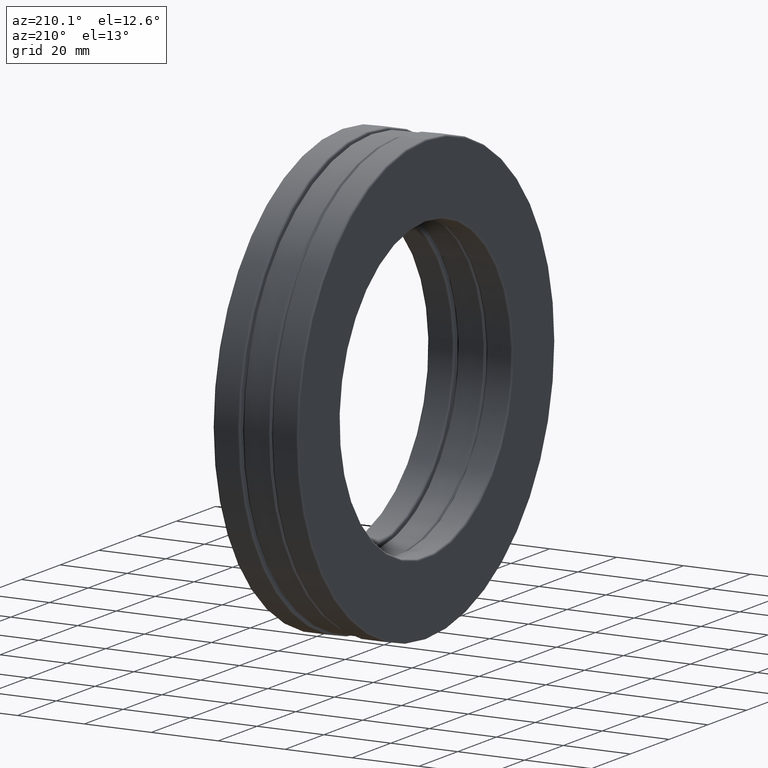
[diagram: clean part render]
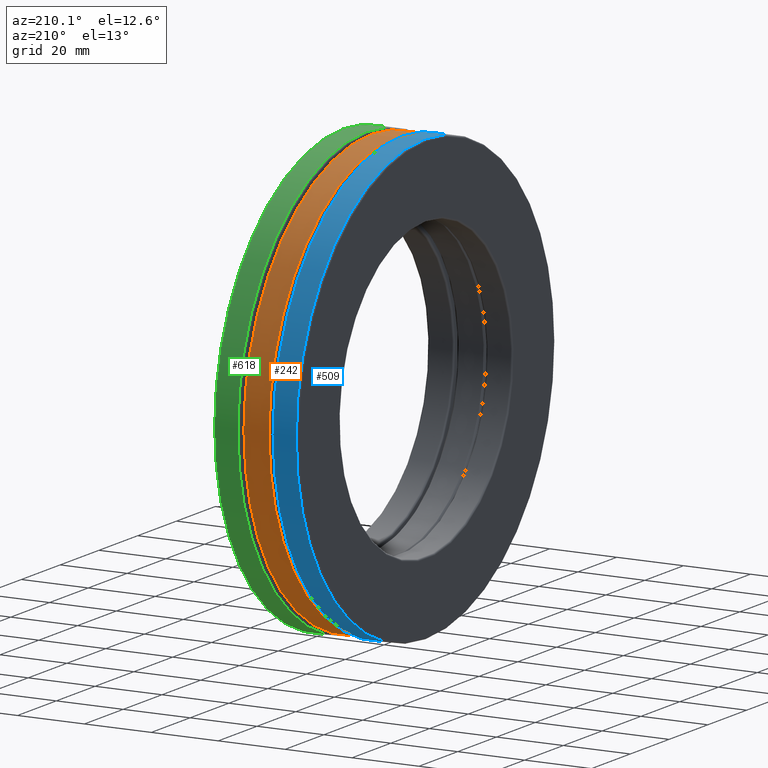
[diagram: same view with three faces highlighted in distinct colors, each labeled with its STEP entity id]
A machine part, auxiliary view with three faces highlighted in distinct colors.
Their STEP definitions:

[orange] entity #242 — the highlighted cylindrical surface (bore or boss wall) has radius 65.7701 mm, axis along (-1, -0, -0).
#5 = VERTEX_POINT ( 'NONE', #1248 ) ;
#10 = DIRECTION ( 'NONE',  ( 0.0000000000000000000, 0.0000000000000000000, 1.000000000000000000 ) ) ;
#78 = DIRECTION ( 'NONE',  ( -1.000000000000000000, -0.0000000000000000000, -0.0000000000000000000 ) ) ;
#114 = AXIS2_PLACEMENT_3D ( 'NONE', #664, #907, #1452 ) ;
#176 = DIRECTION ( 'NONE',  ( 0.0000000000000000000, 0.0000000000000000000, 1.000000000000000000 ) ) ;
#186 = AXIS2_PLACEMENT_3D ( 'NONE', #979, #78, #176 ) ;
#242 = ADVANCED_FACE ( 'NONE', ( #1429, #1097 ), #970, .T. ) ;
#295 = CIRCLE ( 'NONE', #1127, 2.589375000000000000 ) ;
#404 = EDGE_CURVE ( 'NONE', #800, #800, #295, .T. ) ;
#444 = CARTESIAN_POINT ( 'NONE',  ( 0.1475000000000001000, 0.0000000000000000000, 2.589375000000000000 ) ) ;
#628 = ORIENTED_EDGE ( 'NONE', *, *, #404, .T. ) ;
#664 = CARTESIAN_POINT ( 'NONE',  ( 0.0000000000000000000, 0.0000000000000000000, 0.0000000000000000000 ) ) ;
#799 = EDGE_LOOP ( 'NONE', ( #628 ) ) ;
#800 = VERTEX_POINT ( 'NONE', #444 ) ;
#888 = ORIENTED_EDGE ( 'NONE', *, *, #1312, .F. ) ;
#907 = DIRECTION ( 'NONE',  ( -1.000000000000000000, -0.0000000000000000000, -0.0000000000000000000 ) ) ;
#970 = CYLINDRICAL_SURFACE ( 'NONE', #114, 2.589375000000000000 ) ;
#979 = CARTESIAN_POINT ( 'NONE',  ( -0.1475000000000001300, 0.0000000000000000000, 0.0000000000000000000 ) ) ;
#1097 = FACE_OUTER_BOUND ( 'NONE', #1258, .T. ) ;
#1127 = AXIS2_PLACEMENT_3D ( 'NONE', #1259, #1363, #10 ) ;
#1238 = CIRCLE ( 'NONE', #186, 2.589375000000000000 ) ;
#1248 = CARTESIAN_POINT ( 'NONE',  ( -0.1475000000000001300, 0.0000000000000000000, 2.589375000000000000 ) ) ;
#1258 = EDGE_LOOP ( 'NONE', ( #888 ) ) ;
#1259 = CARTESIAN_POINT ( 'NONE',  ( 0.1475000000000001000, 0.0000000000000000000, 0.0000000000000000000 ) ) ;
#1312 = EDGE_CURVE ( 'NONE', #5, #5, #1238, .T. ) ;
#1363 = DIRECTION ( 'NONE',  ( -1.000000000000000000, -0.0000000000000000000, -0.0000000000000000000 ) ) ;
#1429 = FACE_OUTER_BOUND ( 'NONE', #799, .T. ) ;
#1452 = DIRECTION ( 'NONE',  ( 0.0000000000000000000, 0.0000000000000000000, 1.000000000000000000 ) ) ;

[blue] entity #509 — the highlighted cylindrical surface (bore or boss wall) has radius 66.2781 mm, axis along (-1, -0, -0).
#1 = ORIENTED_EDGE ( 'NONE', *, *, #1469, .F. ) ;
#48 = DIRECTION ( 'NONE',  ( -1.000000000000000000, -0.0000000000000000000, -0.0000000000000000000 ) ) ;
#241 = DIRECTION ( 'NONE',  ( -1.000000000000000000, -0.0000000000000000000, -0.0000000000000000000 ) ) ;
#333 = DIRECTION ( 'NONE',  ( -1.000000000000000000, -0.0000000000000000000, -0.0000000000000000000 ) ) ;
#464 = EDGE_LOOP ( 'NONE', ( #749 ) ) ;
#509 = ADVANCED_FACE ( 'NONE', ( #1254, #1290 ), #1443, .T. ) ;
#540 = AXIS2_PLACEMENT_3D ( 'NONE', #1177, #48, #835 ) ;
#585 = CARTESIAN_POINT ( 'NONE',  ( -0.2074999999999997700, 0.0000000000000000000, 2.609375000000000000 ) ) ;
#641 = EDGE_LOOP ( 'NONE', ( #1 ) ) ;
#669 = AXIS2_PLACEMENT_3D ( 'NONE', #1231, #333, #778 ) ;
#718 = CIRCLE ( 'NONE', #669, 2.609375000000000000 ) ;
#749 = ORIENTED_EDGE ( 'NONE', *, *, #987, .T. ) ;
#767 = VERTEX_POINT ( 'NONE', #585 ) ;
#778 = DIRECTION ( 'NONE',  ( 0.0000000000000000000, 0.0000000000000000000, 1.000000000000000000 ) ) ;
#810 = CARTESIAN_POINT ( 'NONE',  ( -0.4800000000000002000, 0.0000000000000000000, 2.609375000000000000 ) ) ;
#835 = DIRECTION ( 'NONE',  ( 0.0000000000000000000, 0.0000000000000000000, 1.000000000000000000 ) ) ;
#987 = EDGE_CURVE ( 'NONE', #767, #767, #1340, .T. ) ;
#1135 = VERTEX_POINT ( 'NONE', #810 ) ;
#1171 = DIRECTION ( 'NONE',  ( 0.0000000000000000000, 0.0000000000000000000, 1.000000000000000000 ) ) ;
#1177 = CARTESIAN_POINT ( 'NONE',  ( 0.0000000000000000000, 0.0000000000000000000, 0.0000000000000000000 ) ) ;
#1231 = CARTESIAN_POINT ( 'NONE',  ( -0.4800000000000002000, 0.0000000000000000000, 0.0000000000000000000 ) ) ;
#1254 = FACE_OUTER_BOUND ( 'NONE', #641, .T. ) ;
#1268 = CARTESIAN_POINT ( 'NONE',  ( -0.2074999999999997700, 0.0000000000000000000, 0.0000000000000000000 ) ) ;
#1290 = FACE_OUTER_BOUND ( 'NONE', #464, .T. ) ;
#1340 = CIRCLE ( 'NONE', #1352, 2.609375000000000000 ) ;
#1352 = AXIS2_PLACEMENT_3D ( 'NONE', #1268, #241, #1171 ) ;
#1443 = CYLINDRICAL_SURFACE ( 'NONE', #540, 2.609375000000000000 ) ;
#1469 = EDGE_CURVE ( 'NONE', #1135, #1135, #718, .T. ) ;

[green] entity #618 — the highlighted cylindrical surface (bore or boss wall) has radius 66.2781 mm, axis along (-1, -0, -0).
#86 = AXIS2_PLACEMENT_3D ( 'NONE', #100, #1014, #1236 ) ;
#100 = CARTESIAN_POINT ( 'NONE',  ( 0.2074999999999999100, 0.0000000000000000000, 0.0000000000000000000 ) ) ;
#238 = EDGE_LOOP ( 'NONE', ( #1364 ) ) ;
#397 = CYLINDRICAL_SURFACE ( 'NONE', #1345, 2.609375000000000000 ) ;
#456 = CARTESIAN_POINT ( 'NONE',  ( 0.2074999999999999100, 0.0000000000000000000, 2.609375000000000000 ) ) ;
#470 = EDGE_LOOP ( 'NONE', ( #1173 ) ) ;
#501 = VERTEX_POINT ( 'NONE', #456 ) ;
#553 = DIRECTION ( 'NONE',  ( -1.000000000000000000, -0.0000000000000000000, -0.0000000000000000000 ) ) ;
#558 = FACE_OUTER_BOUND ( 'NONE', #238, .T. ) ;
#559 = CIRCLE ( 'NONE', #86, 2.609375000000000000 ) ;
#618 = ADVANCED_FACE ( 'NONE', ( #558, #913 ), #397, .T. ) ;
#715 = CARTESIAN_POINT ( 'NONE',  ( 0.4800000000000000900, 0.0000000000000000000, 2.609375000000000000 ) ) ;
#759 = EDGE_CURVE ( 'NONE', #1095, #1095, #966, .T. ) ;
#886 = DIRECTION ( 'NONE',  ( 0.0000000000000000000, 0.0000000000000000000, 1.000000000000000000 ) ) ;
#913 = FACE_OUTER_BOUND ( 'NONE', #470, .T. ) ;
#966 = CIRCLE ( 'NONE', #1303, 2.609375000000000000 ) ;
#1014 = DIRECTION ( 'NONE',  ( -1.000000000000000000, -0.0000000000000000000, -0.0000000000000000000 ) ) ;
#1086 = CARTESIAN_POINT ( 'NONE',  ( 0.0000000000000000000, 0.0000000000000000000, 0.0000000000000000000 ) ) ;
#1095 = VERTEX_POINT ( 'NONE', #715 ) ;
#1173 = ORIENTED_EDGE ( 'NONE', *, *, #759, .T. ) ;
#1196 = DIRECTION ( 'NONE',  ( -1.000000000000000000, -0.0000000000000000000, -0.0000000000000000000 ) ) ;
#1228 = CARTESIAN_POINT ( 'NONE',  ( 0.4800000000000000900, 0.0000000000000000000, 0.0000000000000000000 ) ) ;
#1236 = DIRECTION ( 'NONE',  ( 0.0000000000000000000, 0.0000000000000000000, 1.000000000000000000 ) ) ;
#1303 = AXIS2_PLACEMENT_3D ( 'NONE', #1228, #553, #886 ) ;
#1318 = DIRECTION ( 'NONE',  ( 0.0000000000000000000, 0.0000000000000000000, 1.000000000000000000 ) ) ;
#1345 = AXIS2_PLACEMENT_3D ( 'NONE', #1086, #1196, #1318 ) ;
#1364 = ORIENTED_EDGE ( 'NONE', *, *, #1382, .F. ) ;
#1382 = EDGE_CURVE ( 'NONE', #501, #501, #559, .T. ) ;